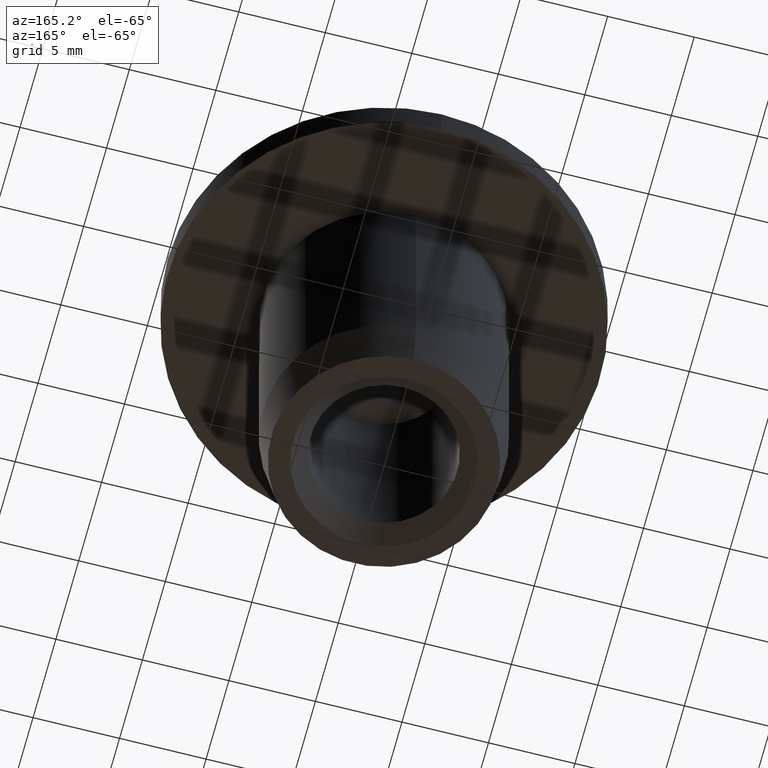
[diagram: clean part render]
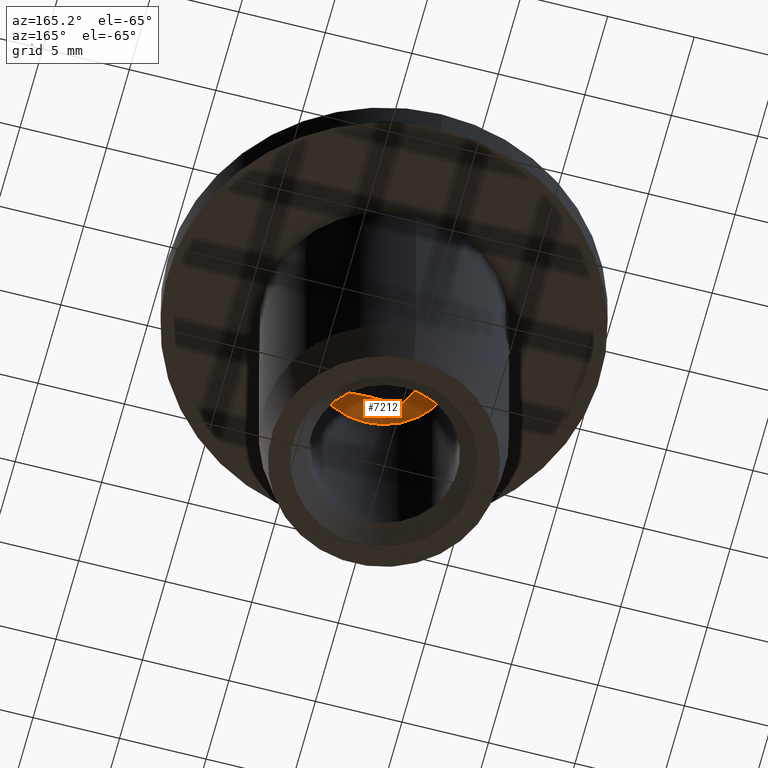
[diagram: same view with one face highlighted and labeled with its STEP entity id]
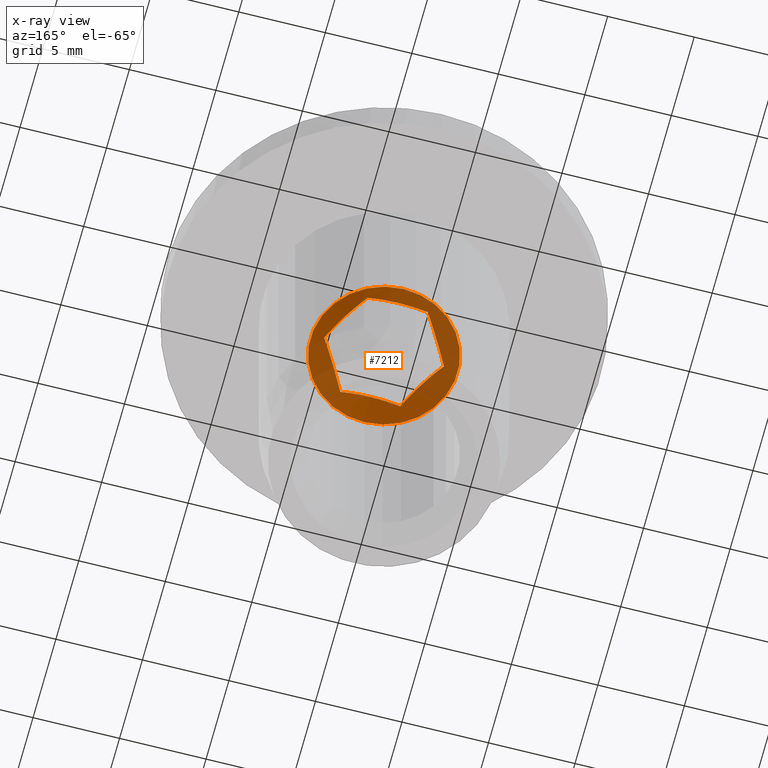
[diagram: x-ray of the same camera — body ghosted, the highlighted face saturated]
A machine part, auxiliary view. The second image highlights one B-rep face of the part: STEP entity #7212.
The next image is the same camera in x-ray: the body ghosted, the highlighted face saturated — about 71% of this face is hidden behind the body in this view.
In plain terms, the highlighted conical surface has half-angle 59 deg.
Its self-contained STEP definition (entity closure, byte-faithful):
#47 = CARTESIAN_POINT ( 'NONE',  ( -1.732050807568877193, 2.999999999999999556, 4.222215390021087700 ) ) ;
#103 = CARTESIAN_POINT ( 'NONE',  ( -1.450882366376838872, 3.000000000000000000, 4.306686911833939924 ) ) ;
#516 = CARTESIAN_POINT ( 'NONE',  ( 2.301245794182109172, 2.014125363772394373, 4.500620893838215508 ) ) ;
#627 = B_SPLINE_CURVE_WITH_KNOTS ( 'NONE', 3,
 ( #2849, #13037, #5415, #7988, #14332, #6693, #1328, #3926, #12821, #5201 ),
 .UNSPECIFIED., .F., .F.,
 ( 4, 2, 2, 2, 4 ),
 ( 0.009415511443428562638, 0.01029347741003877083, 0.01117144337664898075, 0.01204940934325918894, 0.01292737530986939887 ),
 .UNSPECIFIED. ) ;
#742 = EDGE_CURVE ( 'NONE', #6797, #3563, #5130, .T. ) ;
#989 = ORIENTED_EDGE ( 'NONE', *, *, #742, .F. ) ;
#1131 = CARTESIAN_POINT ( 'NONE',  ( 2.016079539770758711, -2.508047805016967668, 4.377350167721606233 ) ) ;
#1328 = CARTESIAN_POINT ( 'NONE',  ( -0.5839096682793382120, -3.000000000000000000, 4.474845914773989186 ) ) ;
#1392 = CARTESIAN_POINT ( 'NONE',  ( -0.5839096682793386561, 3.000000000000000444, 4.474845914773990962 ) ) ;
#1507 = CARTESIAN_POINT ( 'NONE',  ( -3.464101615137753942, 2.192448558790268216E-16, 4.222215390021087700 ) ) ;
#1604 = CARTESIAN_POINT ( 'NONE',  ( 1.732050807568876527, -3.000000000000000000, 4.222215390021087700 ) ) ;
#1806 = CARTESIAN_POINT ( 'NONE',  ( 3.180072882935874201, 0.4919521949830329977, 4.377350167721606233 ) ) ;
#1845 = CARTESIAN_POINT ( 'NONE',  ( -2.452539552078865537, 1.752076888227187546, 4.501301000976785538 ) ) ;
#2212 = CARTESIAN_POINT ( 'NONE',  ( 1.873426030784674845, -2.755130930458846272, 4.307162194158420832 ) ) ;
#2261 = CARTESIAN_POINT ( 'NONE',  ( 3.464101615137754830, 5.109919344237099849E-16, 4.222215390021086812 ) ) ;
#2408 = DIRECTION ( 'NONE',  ( 0.000000000000000000, 1.000000000000000000, 2.040851148208009970E-16 ) ) ;
#2579 = CARTESIAN_POINT ( 'NONE',  ( -1.732050807568877193, 2.999999999999999556, 4.222215390021087700 ) ) ;
#2700 = CARTESIAN_POINT ( 'NONE',  ( -2.891030868944318932, -0.9925876487384380775, 4.474602601525133672 ) ) ;
#2849 = CARTESIAN_POINT ( 'NONE',  ( 1.732050807568876527, -3.000000000000000000, 4.222215390021087700 ) ) ;
#3166 = CARTESIAN_POINT ( 'NONE',  ( -1.732050807568877193, 2.999999999999999556, 4.222215390021087700 ) ) ;
#3313 = EDGE_LOOP ( 'NONE', ( #12404 ) ) ;
#3563 = VERTEX_POINT ( 'NONE', #16276 ) ;
#3648 = ORIENTED_EDGE ( 'NONE', *, *, #5476, .F. ) ;
#3926 = CARTESIAN_POINT ( 'NONE',  ( -1.162372538215273421, -3.000000000000000444, 4.377715350816475670 ) ) ;
#4131 = CARTESIAN_POINT ( 'NONE',  ( 0.000000000000000000, -1.170804304998253095E-15, 3.750000000000000000 ) ) ;
#4344 = CARTESIAN_POINT ( 'NONE',  ( 2.014385475939219905, 2.510982009644455282, 4.391859173632531643 ) ) ;
#4528 = EDGE_LOOP ( 'NONE', ( #989, #3648, #4873, #14759, #7818, #6505 ) ) ;
#4873 = ORIENTED_EDGE ( 'NONE', *, *, #15556, .F. ) ;
#4898 = CARTESIAN_POINT ( 'NONE',  ( 3.181766946767411675, -0.4890179903555446628, 4.391859173632532531 ) ) ;
#5037 = CARTESIAN_POINT ( 'NONE',  ( 0.2929096851841818117, 3.000000000000000444, 4.501077603041025554 ) ) ;
#5130 = B_SPLINE_CURVE_WITH_KNOTS ( 'NONE', 3,
 ( #5326, #10331, #14294, #15531, #2700, #15582, #11756, #1507 ),
 .UNSPECIFIED., .F., .F.,
 ( 4, 2, 2, 4 ),
 ( 2.386327283085332957E-07, 0.001750670349311235280, 0.002625886207602697638, 0.003501102065894160214 ),
 .UNSPECIFIED. ) ;
#5154 = DIRECTION ( 'NONE',  ( -0.000000000000000000, 2.543903654669739155E-16, -1.000000000000000000 ) ) ;
#5201 = CARTESIAN_POINT ( 'NONE',  ( -1.732050807568876527, -3.000000000000000000, 4.222215390021087700 ) ) ;
#5326 = CARTESIAN_POINT ( 'NONE',  ( -1.732050807568876527, -3.000000000000000000, 4.222215390021087700 ) ) ;
#5347 = B_SPLINE_CURVE_WITH_KNOTS ( 'NONE', 3,
 ( #47, #103, #12660, #1392, #12600, #5037, #13956, #6313, #15247, #10422 ),
 .UNSPECIFIED., .F., .F.,
 ( 4, 2, 2, 2, 4 ),
 ( 0.003093407584254519605, 0.003970464661724978570, 0.004847521739195437968, 0.005724578816665897366, 0.006601635894136355029 ),
 .UNSPECIFIED. ) ;
#5415 = CARTESIAN_POINT ( 'NONE',  ( 1.168952004985696513, -3.000000000000000444, 4.376277565806655723 ) ) ;
#5476 = EDGE_CURVE ( 'NONE', #14100, #6797, #627, .T. ) ;
#5616 = CARTESIAN_POINT ( 'NONE',  ( 2.743612870627765155, 1.247923111772813343, 4.501301000976785538 ) ) ;
#5712 = CARTESIAN_POINT ( 'NONE',  ( -3.181766946767409454, 0.4890179903555456065, 4.391859173632531643 ) ) ;
#5728 = CONICAL_SURFACE ( 'NONE', #13878, 4.249999999999996447, 1.029744258676653645 ) ;
#5767 = CARTESIAN_POINT ( 'NONE',  ( -2.894906628524521075, 0.9858746362276058495, 4.500620893838215508 ) ) ;
#5781 = CARTESIAN_POINT ( 'NONE',  ( 3.322726391921957401, 0.2448690695411541163, 4.307162194158416391 ) ) ;
#5944 = DIRECTION ( 'NONE',  ( 0.000000000000000000, 1.000000000000000000, 2.040851148208009970E-16 ) ) ;
#6012 = CARTESIAN_POINT ( 'NONE',  ( 2.452539552078865981, -1.752076888227187101, 4.501301000976785538 ) ) ;
#6313 = CARTESIAN_POINT ( 'NONE',  ( 1.168952004985697846, 3.000000000000000000, 4.376277565806654835 ) ) ;
#6505 = ORIENTED_EDGE ( 'NONE', *, *, #16094, .F. ) ;
#6570 = EDGE_CURVE ( 'NONE', #7989, #13537, #5347, .T. ) ;
#6693 = CARTESIAN_POINT ( 'NONE',  ( -0.2929720436307692855, -3.000000000000000888, 4.501073944333169763 ) ) ;
#6797 = VERTEX_POINT ( 'NONE', #13376 ) ;
#7054 = CARTESIAN_POINT ( 'NONE',  ( -1.873426030784675733, 2.755130930458844940, 4.307162194158418167 ) ) ;
#7212 = ADVANCED_FACE ( 'NONE', ( #8718, #14121 ), #5728, .F. ) ;
#7411 = CARTESIAN_POINT ( 'NONE',  ( 3.464101615137754830, 5.109919344237099849E-16, 4.222215390021086812 ) ) ;
#7469 = CARTESIAN_POINT ( 'NONE',  ( 1.732050807568876527, -3.000000000000000000, 4.222215390021087700 ) ) ;
#7818 = ORIENTED_EDGE ( 'NONE', *, *, #6570, .F. ) ;
#7988 = CARTESIAN_POINT ( 'NONE',  ( 0.5901805585107680052, -3.000000000000000444, 4.474118662341004082 ) ) ;
#7989 = VERTEX_POINT ( 'NONE', #2579 ) ;
#8608 = DIRECTION ( 'NONE',  ( -0.000000000000000000, 2.543903654669739155E-16, -1.000000000000000000 ) ) ;
#8630 = CARTESIAN_POINT ( 'NONE',  ( 0.000000000000000000, 4.249999999999995559, 3.750000000000000888 ) ) ;
#8699 = CIRCLE ( 'NONE', #8755, 4.249999999999996447 ) ;
#8718 = FACE_OUTER_BOUND ( 'NONE', #3313, .T. ) ;
#8755 = AXIS2_PLACEMENT_3D ( 'NONE', #10168, #5154, #2408 ) ;
#8823 = EDGE_CURVE ( 'NONE', #14960, #14960, #8699, .T. ) ;
#9844 = CARTESIAN_POINT ( 'NONE',  ( 2.894906628524522407, -0.9858746362276056274, 4.500620893838217285 ) ) ;
#9992 = B_SPLINE_CURVE_WITH_KNOTS ( 'NONE', 3,
 ( #10765, #5712, #5767, #1845, #14741, #14680, #7054, #3166 ),
 .UNSPECIFIED., .F., .F.,
 ( 4, 2, 2, 4 ),
 ( 2.386327283087848644E-07, 0.001750670349311234412, 0.002625886207602697205, 0.003501102065894159780 ),
 .UNSPECIFIED. ) ;
#10168 = CARTESIAN_POINT ( 'NONE',  ( 0.000000000000000000, -1.170804304998253095E-15, 3.750000000000000000 ) ) ;
#10331 = CARTESIAN_POINT ( 'NONE',  ( -2.014385475939221237, -2.510982009644456170, 4.391859173632535196 ) ) ;
#10422 = CARTESIAN_POINT ( 'NONE',  ( 1.732050807568876749, 3.000000000000000444, 4.222215390021086812 ) ) ;
#10727 = CARTESIAN_POINT ( 'NONE',  ( 3.464101615137754830, 5.109919344237099849E-16, 4.222215390021086812 ) ) ;
#10765 = CARTESIAN_POINT ( 'NONE',  ( -3.464101615137753942, 2.192448558790268216E-16, 4.222215390021087700 ) ) ;
#11189 = VERTEX_POINT ( 'NONE', #2261 ) ;
#11756 = CARTESIAN_POINT ( 'NONE',  ( -3.322726391921955180, -0.2448690695411542273, 4.307162194158416391 ) ) ;
#12120 = CARTESIAN_POINT ( 'NONE',  ( 1.732050807568876749, 3.000000000000000444, 4.222215390021086812 ) ) ;
#12404 = ORIENTED_EDGE ( 'NONE', *, *, #8823, .T. ) ;
#12574 = CARTESIAN_POINT ( 'NONE',  ( 2.305121553762311315, -2.007412351261562478, 4.474602601525134560 ) ) ;
#12600 = CARTESIAN_POINT ( 'NONE',  ( -0.2929720436307691744, 2.999999999999999112, 4.501073944333169763 ) ) ;
#12660 = CARTESIAN_POINT ( 'NONE',  ( -1.162372538215273643, 2.999999999999999556, 4.377715350816474782 ) ) ;
#12821 = CARTESIAN_POINT ( 'NONE',  ( -1.450882366376838428, -3.000000000000000444, 4.306686911833940812 ) ) ;
#12962 = B_SPLINE_CURVE_WITH_KNOTS ( 'NONE', 3,
 ( #7411, #4898, #9844, #6012, #12574, #1131, #2212, #7469 ),
 .UNSPECIFIED., .F., .F.,
 ( 4, 2, 2, 4 ),
 ( 2.386327283081993000E-07, 0.001750670349311234629, 0.002625886207602698072, 0.003501102065894161949 ),
 .UNSPECIFIED. ) ;
#13037 = CARTESIAN_POINT ( 'NONE',  ( 1.452444714685241056, -3.000000000000000444, 4.306217535048058487 ) ) ;
#13282 = EDGE_CURVE ( 'NONE', #13537, #11189, #16566, .T. ) ;
#13376 = CARTESIAN_POINT ( 'NONE',  ( -1.732050807568876527, -3.000000000000000000, 4.222215390021087700 ) ) ;
#13537 = VERTEX_POINT ( 'NONE', #16194 ) ;
#13878 = AXIS2_PLACEMENT_3D ( 'NONE', #4131, #8608, #5944 ) ;
#13956 = CARTESIAN_POINT ( 'NONE',  ( 0.5901805585107687824, 3.000000000000000444, 4.474118662341005859 ) ) ;
#14100 = VERTEX_POINT ( 'NONE', #1604 ) ;
#14121 = FACE_BOUND ( 'NONE', #4528, .T. ) ;
#14294 = CARTESIAN_POINT ( 'NONE',  ( -2.301245794182110060, -2.014125363772394817, 4.500620893838217285 ) ) ;
#14332 = CARTESIAN_POINT ( 'NONE',  ( 0.2929096851841815896, -3.000000000000000888, 4.501077603041025554 ) ) ;
#14529 = CARTESIAN_POINT ( 'NONE',  ( 2.891030868944320709, 0.9925876487384382996, 4.474602601525133672 ) ) ;
#14680 = CARTESIAN_POINT ( 'NONE',  ( -2.016079539770758711, 2.508047805016967224, 4.377350167721606233 ) ) ;
#14741 = CARTESIAN_POINT ( 'NONE',  ( -2.305121553762312203, 2.007412351261562033, 4.474602601525133672 ) ) ;
#14759 = ORIENTED_EDGE ( 'NONE', *, *, #13282, .F. ) ;
#14960 = VERTEX_POINT ( 'NONE', #8630 ) ;
#15247 = CARTESIAN_POINT ( 'NONE',  ( 1.452444714685241722, 3.000000000000000444, 4.306217535048058487 ) ) ;
#15531 = CARTESIAN_POINT ( 'NONE',  ( -2.743612870627764710, -1.247923111772812454, 4.501301000976782873 ) ) ;
#15556 = EDGE_CURVE ( 'NONE', #11189, #14100, #12962, .T. ) ;
#15582 = CARTESIAN_POINT ( 'NONE',  ( -3.180072882935872869, -0.4919521949830329977, 4.377350167721606233 ) ) ;
#16094 = EDGE_CURVE ( 'NONE', #3563, #7989, #9992, .T. ) ;
#16194 = CARTESIAN_POINT ( 'NONE',  ( 1.732050807568876749, 3.000000000000000444, 4.222215390021086812 ) ) ;
#16276 = CARTESIAN_POINT ( 'NONE',  ( -3.464101615137753942, 2.192448558790268216E-16, 4.222215390021087700 ) ) ;
#16566 = B_SPLINE_CURVE_WITH_KNOTS ( 'NONE', 3,
 ( #12120, #4344, #516, #5616, #14529, #1806, #5781, #10727 ),
 .UNSPECIFIED., .F., .F.,
 ( 4, 2, 2, 4 ),
 ( 2.386327283080545632E-07, 0.001750670349311234195, 0.002625886207602697638, 0.003501102065894160648 ),
 .UNSPECIFIED. ) ;